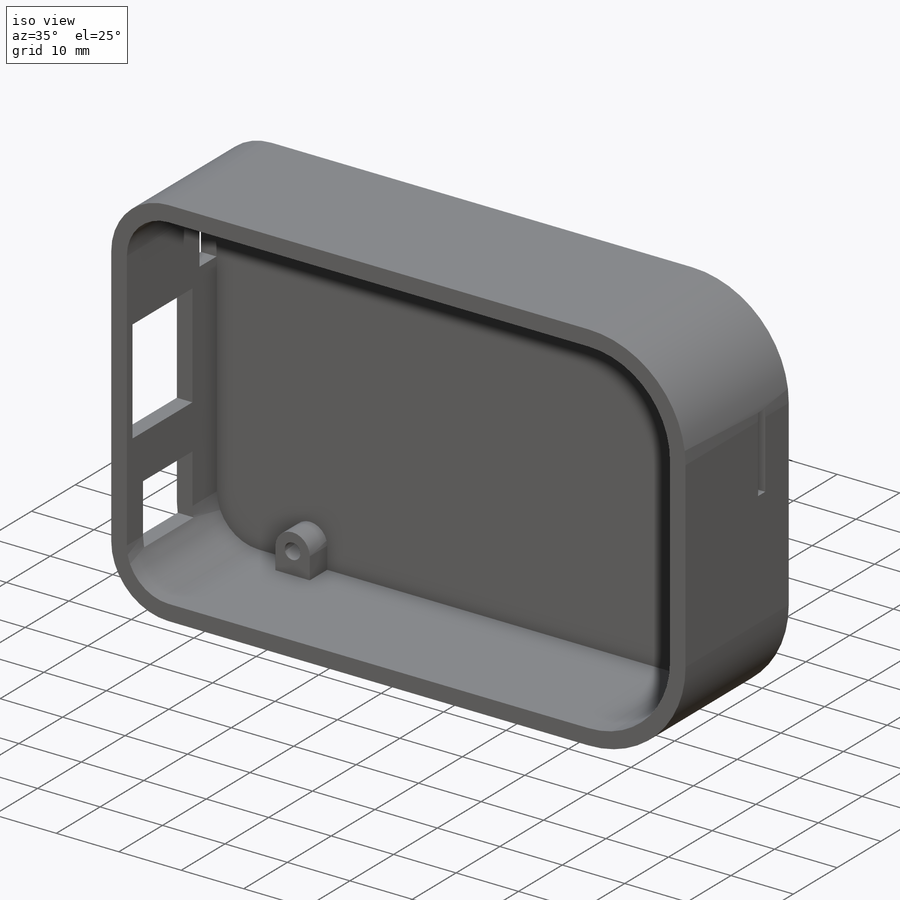
[diagram: iso view]
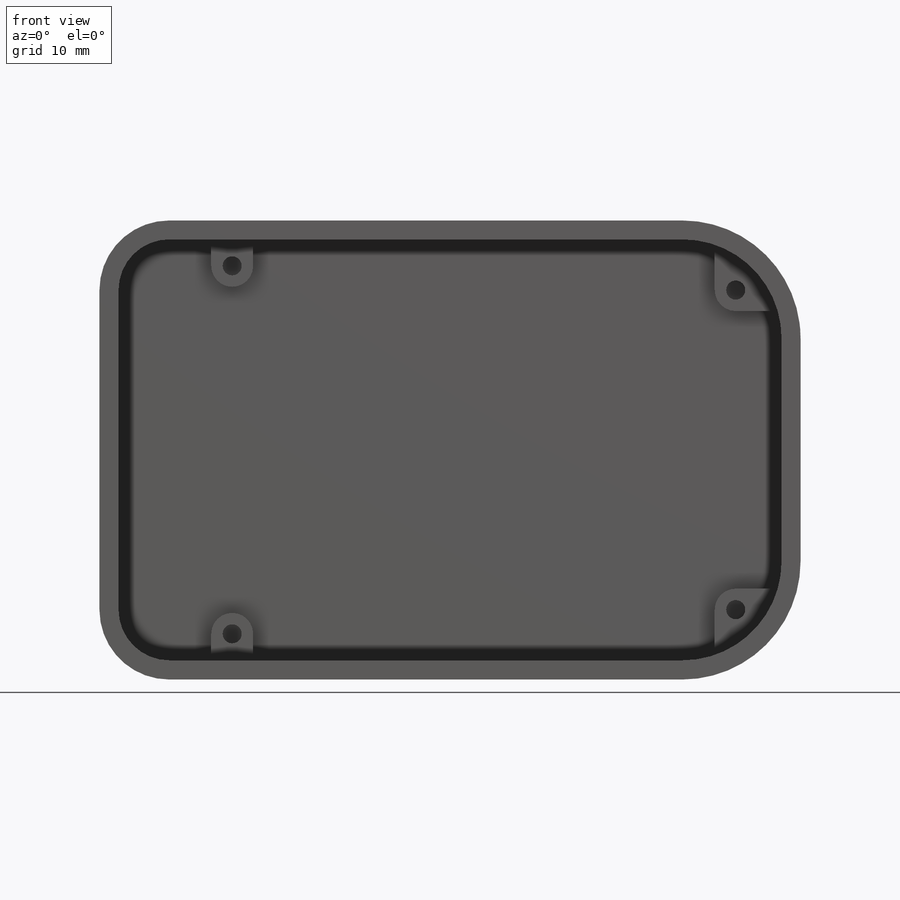
[diagram: front view]
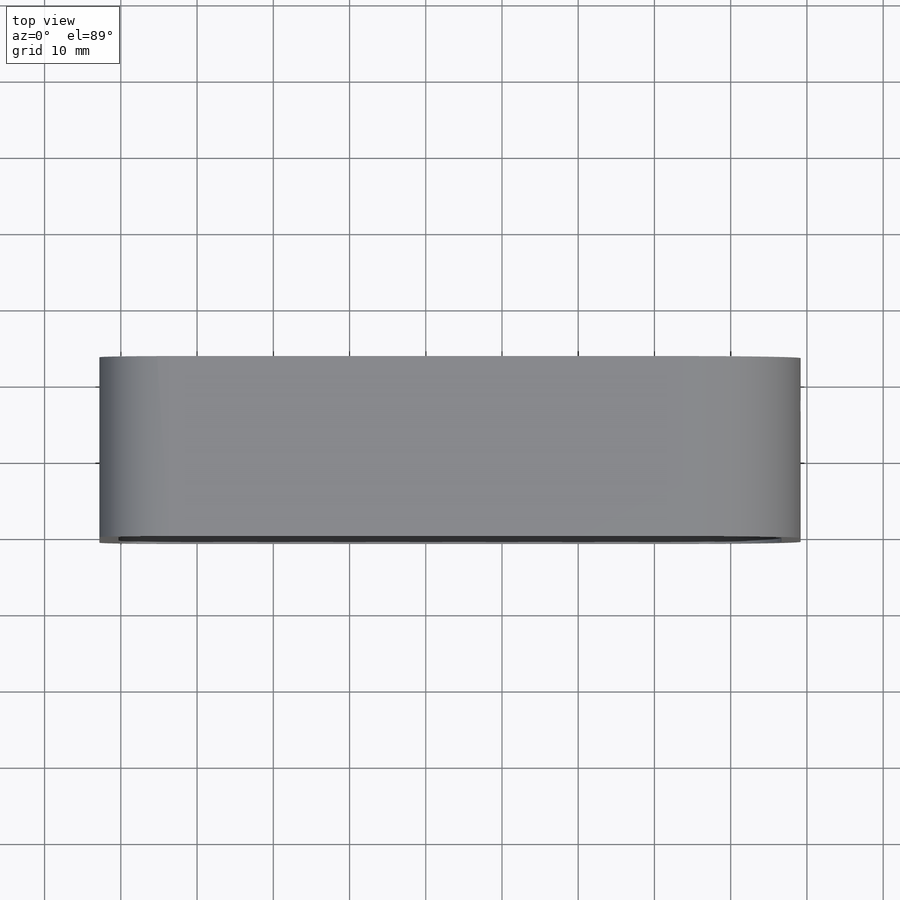
[diagram: top view]
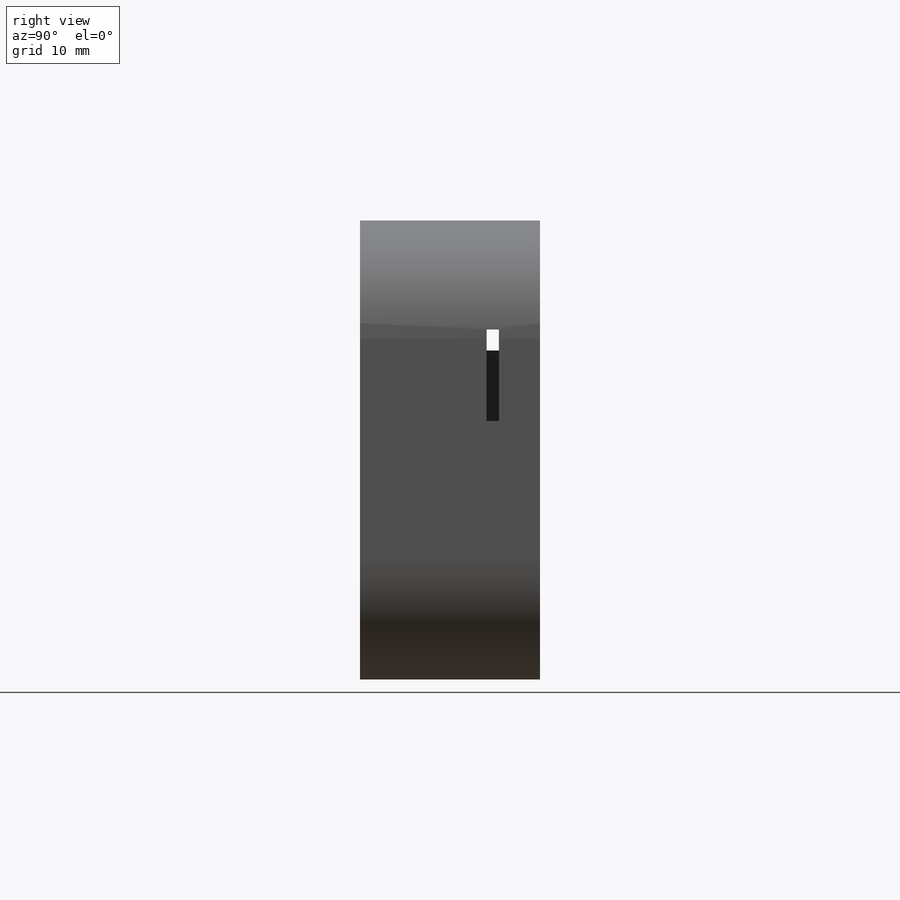
[diagram: right view]
SOLIDWORKS PART (.sldprt)
format: sldprt  version: not decoded by parser v0  size: 891,392 bytes
history: native  units: mm
features: sketch x12, extrude x8, cut_extrude x3, material x1 (+16 scaffold rows collapsed)
feature tree (40):
  scaffold x16  (default folders/planes/origin — collapsed)
  material  "Material <not specified>"
  sketch  "BeagleBone board"  dims[c1.D3=6.35mm c1.D4=12.7mm c1.D5=3.0mm c2.D4=12.7mm c2.D3=6.35mm c2.D1=86.36mm c2.D2=54.61mm c2.D6=3.175mm c2.D7=14.605mm c2.D8=51.435mm c2.D9=6.35mm c2.D10=48.26mm c2.D11=80.645mm c2.D12=2.5mm c2.D13=16.0mm c2.D14=21.5mm c2.D15=9.0mm c2.D16=14.5mm c2.D17=5.0mm c2.D18=21.6mm]
  sketch  "Sketch5"  dims[D3=2.5mm D4=5.5mm D1=0.3mm D2=2.5mm]
  extrude  "Bottom frame"  Depth=4mm
  sketch  "Sketch6"  dims[D1=0.0mm]
  extrude  "PCB"  Depth=1.6mm
  sketch  "Sketch7"  dims[D2=0.25mm D3=0.25mm D4=0.25mm D5=0.25mm D1=0.0mm]
  extrude  "upper frame"  Depth=15mm
  sketch  "Sketch8"  dims[D1=0.0mm]
  extrude  "bottom"  Depth=3mm
  sketch  "Sketch9"
  extrude  "network connector boss"  Depth=13.7mm
  sketch  "Sketch10"
  extrude  "Boss-Extrude8"  Depth=11.3mm
  sketch  "Sketch11"  dims[D1=3.9mm D2=7.7mm D3=6.55mm]
  cut_extrude  "mini-USB"  [1 undecoded]
  sketch  "Sketch12"  dims[D1=12.0mm D2=1.61mm D3=11.5mm]
  cut_extrude  "Cut-Extrude3"  [1 undecoded]
  sketch  "Sketch13"  dims[D1=0.3mm D2=2.5mm]
  extrude  "Boss-Extrude9"  Depth=2mm
  sketch  "Sketch14"  dims[D1=6.3mm]
  extrude  "Boss-Extrude10"  Depth=1mm
  sketch  "Sketch15"  dims[D1=2.55mm D2=2.55mm D3=6.0mm D4=6.0mm D5=59.5mm D6=21.0mm]
  cut_extrude  "Cut-Extrude4"  [1 undecoded]
decode coverage: 18 of 23 modeling features carry decoded parameters
note: 3 parameter values undecoded
summary: no parameter record found for 3 features
note: suppression state not decoded; provenance and decode notes live in map.json
